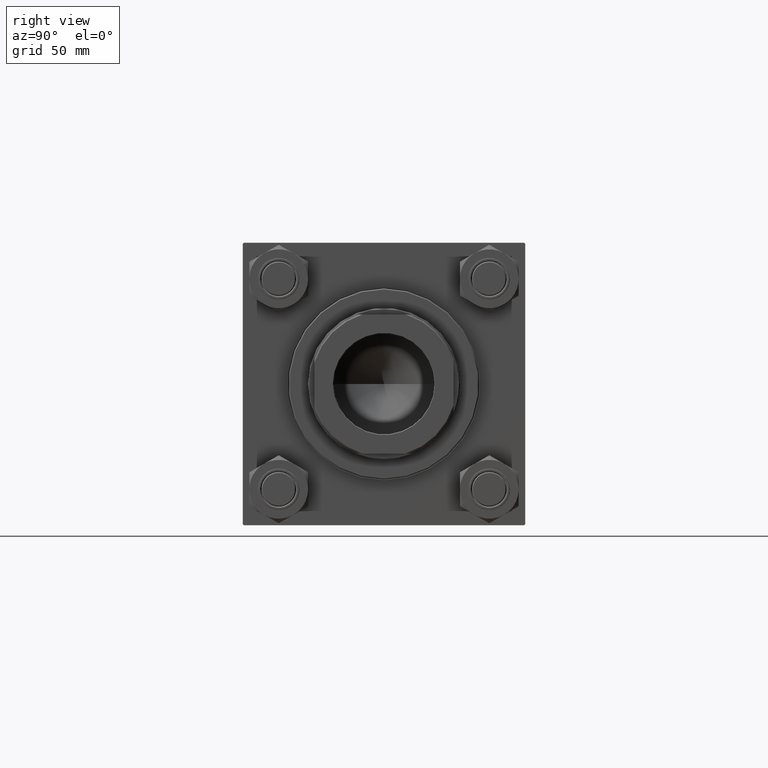
[diagram: clean part render]
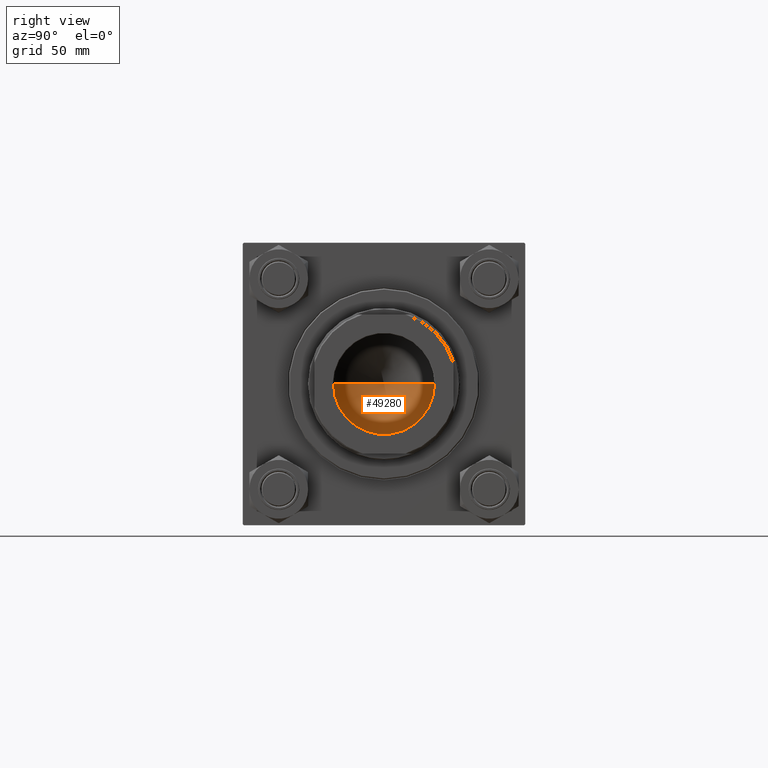
[diagram: same view with one face highlighted and labeled with its STEP entity id]
A machine part, right view. The second image highlights one B-rep face of the part: STEP entity #49280.
In plain terms, the highlighted conical surface has half-angle 59 deg.
Its self-contained STEP definition (entity closure, byte-faithful):
#78 = ORIENTED_EDGE ( 'NONE', *, *, #16599, .T. ) ;
#380 = DIRECTION ( 'NONE',  ( 0.8571673007021117785, 0.000000000000000000, 0.5150380749100550437 ) ) ;
#3619 = CARTESIAN_POINT ( 'NONE',  ( -23.24999999999998579, 2.847303808017594561E-15, 109.9999999999999858 ) ) ;
#3868 = LINE ( 'NONE', #3619, #45308 ) ;
#6433 = CONICAL_SURFACE ( 'NONE', #38930, 23.24999999999998579, 1.029744258676653423 ) ;
#6473 = CARTESIAN_POINT ( 'NONE',  ( 23.24999999999998579, 0.000000000000000000, 109.9999999999999858 ) ) ;
#7674 = DIRECTION ( 'NONE',  ( -0.8571673007021117785, 1.049727191138617956E-16, 0.5150380749100550437 ) ) ;
#11324 = CARTESIAN_POINT ( 'NONE',  ( 0.000000000000000000, 0.000000000000000000, 109.9999999999999858 ) ) ;
#13560 = ORIENTED_EDGE ( 'NONE', *, *, #41107, .T. ) ;
#15350 = LINE ( 'NONE', #38760, #42338 ) ;
#16599 = EDGE_CURVE ( 'NONE', #28181, #40315, #15350, .T. ) ;
#22283 = CARTESIAN_POINT ( 'NONE',  ( -1.584115414415908206E-14, 0.000000000000000000, 96.02999060760919292 ) ) ;
#24215 = CIRCLE ( 'NONE', #43718, 23.24999999999998579 ) ;
#24834 = CARTESIAN_POINT ( 'NONE',  ( 0.000000000000000000, 0.000000000000000000, 109.9999999999999858 ) ) ;
#28181 = VERTEX_POINT ( 'NONE', #22283 ) ;
#30882 = DIRECTION ( 'NONE',  ( 1.000000000000000000, 0.000000000000000000, 0.000000000000000000 ) ) ;
#32143 = ORIENTED_EDGE ( 'NONE', *, *, #40585, .F. ) ;
#37301 = DIRECTION ( 'NONE',  ( 1.000000000000000000, 0.000000000000000000, 0.000000000000000000 ) ) ;
#38760 = CARTESIAN_POINT ( 'NONE',  ( 23.24999999999998579, 0.000000000000000000, 109.9999999999999858 ) ) ;
#38930 = AXIS2_PLACEMENT_3D ( 'NONE', #11324, #45648, #30882 ) ;
#40315 = VERTEX_POINT ( 'NONE', #6473 ) ;
#40585 = EDGE_CURVE ( 'NONE', #28181, #46771, #3868, .T. ) ;
#41107 = EDGE_CURVE ( 'NONE', #40315, #46771, #24215, .T. ) ;
#42338 = VECTOR ( 'NONE', #380, 1000.000000000000000 ) ;
#42557 = EDGE_LOOP ( 'NONE', ( #32143, #78, #13560 ) ) ;
#43718 = AXIS2_PLACEMENT_3D ( 'NONE', #24834, #44420, #37301 ) ;
#44420 = DIRECTION ( 'NONE',  ( -0.000000000000000000, -0.000000000000000000, 1.000000000000000000 ) ) ;
#45308 = VECTOR ( 'NONE', #7674, 1000.000000000000000 ) ;
#45648 = DIRECTION ( 'NONE',  ( -0.000000000000000000, -0.000000000000000000, 1.000000000000000000 ) ) ;
#46771 = VERTEX_POINT ( 'NONE', #47310 ) ;
#47310 = CARTESIAN_POINT ( 'NONE',  ( -23.24999999999998579, 2.847303808017594561E-15, 109.9999999999999858 ) ) ;
#49280 = ADVANCED_FACE ( 'NONE', ( #50235 ), #6433, .F. ) ;
#50235 = FACE_OUTER_BOUND ( 'NONE', #42557, .T. ) ;